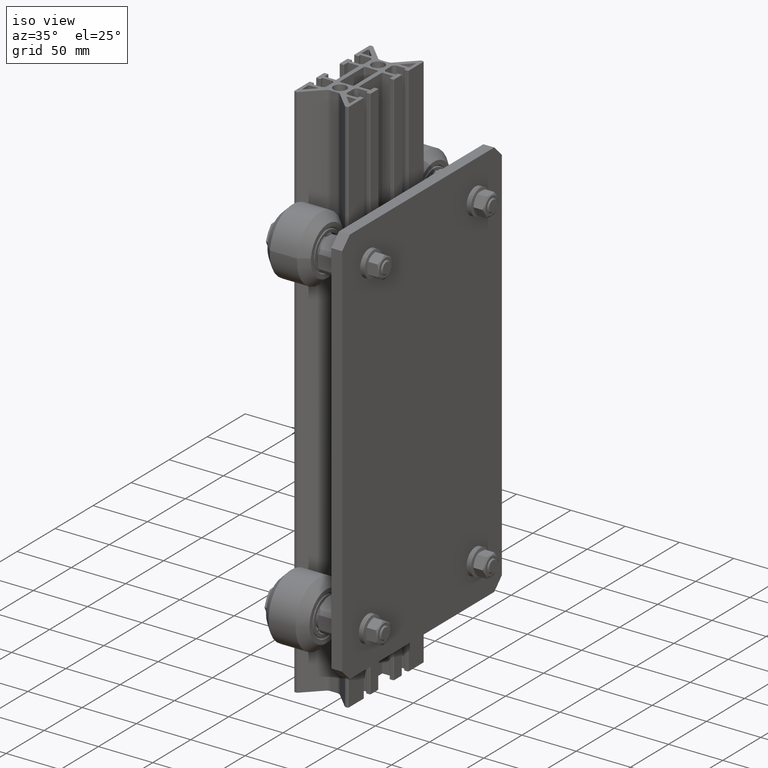
[diagram: clean part render]
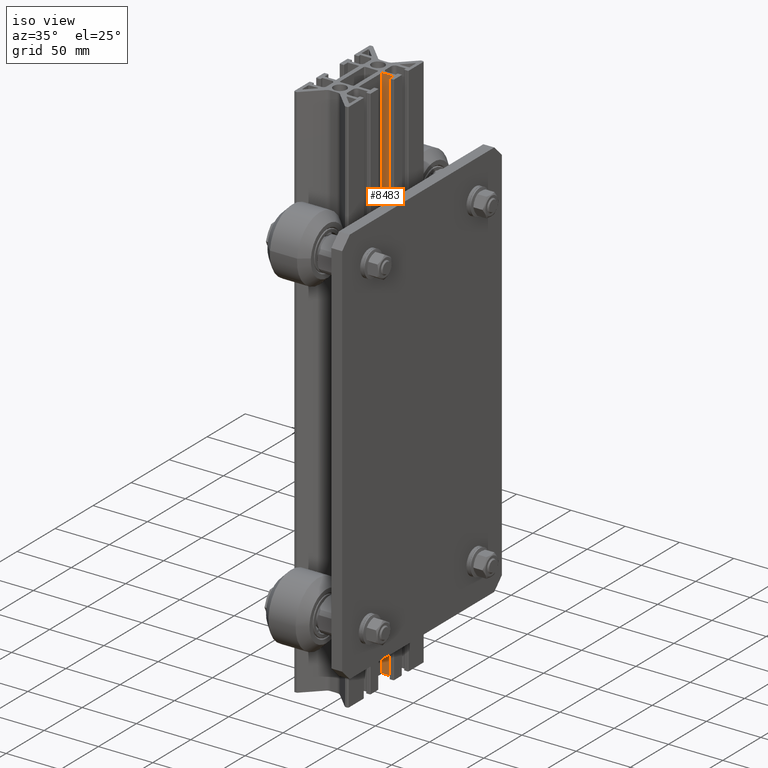
[diagram: same view with one face highlighted and labeled with its STEP entity id]
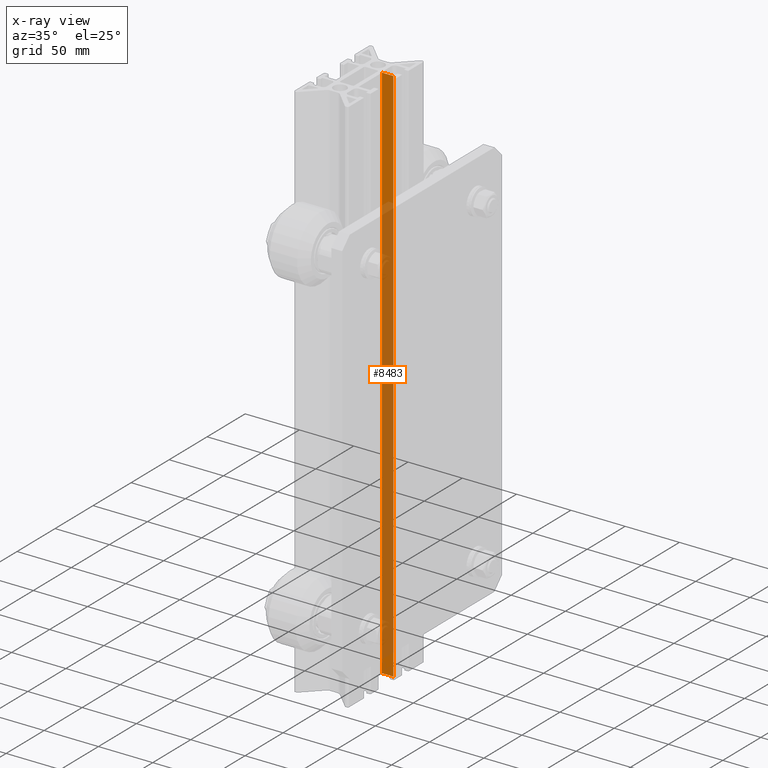
[diagram: x-ray of the same camera — body ghosted, the highlighted face saturated]
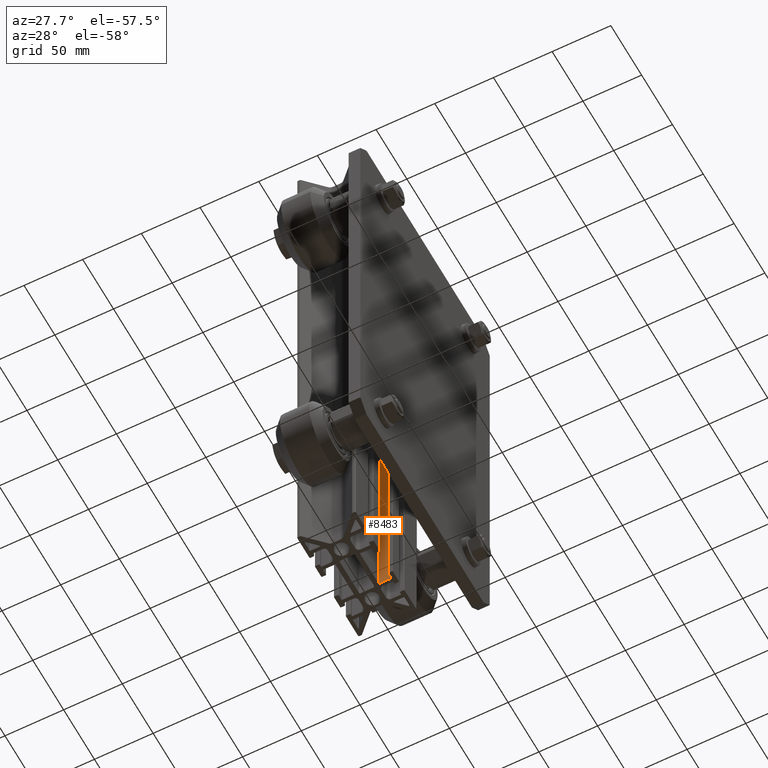
[diagram: same view with one face highlighted and labeled with its STEP entity id]
A machine part, iso view. The second image highlights one B-rep face of the part: STEP entity #8483.
The next image is the same camera in x-ray: the body ghosted, the highlighted face saturated — about 75% of this face is hidden behind the body in this view.
A second angle (auxiliary view) of the same face is appended — the face is thin or edge-on in the first view.
In plain terms, the highlighted planar face has unit normal (0, -1, 0).
Its self-contained STEP definition (entity closure, byte-faithful):
#725=FACE_OUTER_BOUND('',#1199,.T.);
#1199=EDGE_LOOP('',(#6200,#6201,#6202,#6203));
#2033=LINE('',#12636,#2667);
#2193=LINE('',#13173,#2827);
#2288=LINE('',#13377,#2922);
#2289=LINE('',#13379,#2923);
#2667=VECTOR('',#10116,10.);
#2827=VECTOR('',#10562,10.);
#2922=VECTOR('',#10837,10.);
#2923=VECTOR('',#10840,10.);
#3309=VERTEX_POINT('',#12633);
#3310=VERTEX_POINT('',#12635);
#3543=VERTEX_POINT('',#13170);
#3544=VERTEX_POINT('',#13172);
#4181=EDGE_CURVE('',#3309,#3310,#2033,.T.);
#4449=EDGE_CURVE('',#3543,#3544,#2193,.T.);
#4552=EDGE_CURVE('',#3543,#3310,#2288,.T.);
#4553=EDGE_CURVE('',#3544,#3309,#2289,.T.);
#6200=ORIENTED_EDGE('',*,*,#4552,.T.);
#6201=ORIENTED_EDGE('',*,*,#4181,.F.);
#6202=ORIENTED_EDGE('',*,*,#4553,.F.);
#6203=ORIENTED_EDGE('',*,*,#4449,.F.);
#8124=PLANE('',#9388);
#8483=ADVANCED_FACE('',(#725),#8124,.T.);
#9388=AXIS2_PLACEMENT_3D('',#13378,#10838,#10839);
#10116=DIRECTION('',(1.,8.45884209236535E-16,0.));
#10562=DIRECTION('',(-1.,-4.22942104618268E-16,0.));
#10837=DIRECTION('',(0.,0.,1.));
#10838=DIRECTION('center_axis',(4.22942104618268E-16,-1.,0.));
#10839=DIRECTION('ref_axis',(1.,4.22942104618268E-16,0.));
#10840=DIRECTION('',(0.,0.,1.));
#12633=CARTESIAN_POINT('',(10.4999999999788,15.2500000000016,450.));
#12635=CARTESIAN_POINT('',(20.9999999999997,15.2500000000016,450.));
#12636=CARTESIAN_POINT('',(10.4999999999788,15.2500000000016,450.));
#13170=CARTESIAN_POINT('',(20.9999999999997,15.2500000000016,-50.));
#13172=CARTESIAN_POINT('',(10.4999999999788,15.2500000000016,-50.));
#13173=CARTESIAN_POINT('',(10.4999999999788,15.2500000000016,-50.));
#13377=CARTESIAN_POINT('',(20.9999999999997,15.2500000000016,0.));
#13378=CARTESIAN_POINT('Origin',(10.4999999999788,15.2500000000016,0.));
#13379=CARTESIAN_POINT('',(10.4999999999788,15.2500000000016,0.));